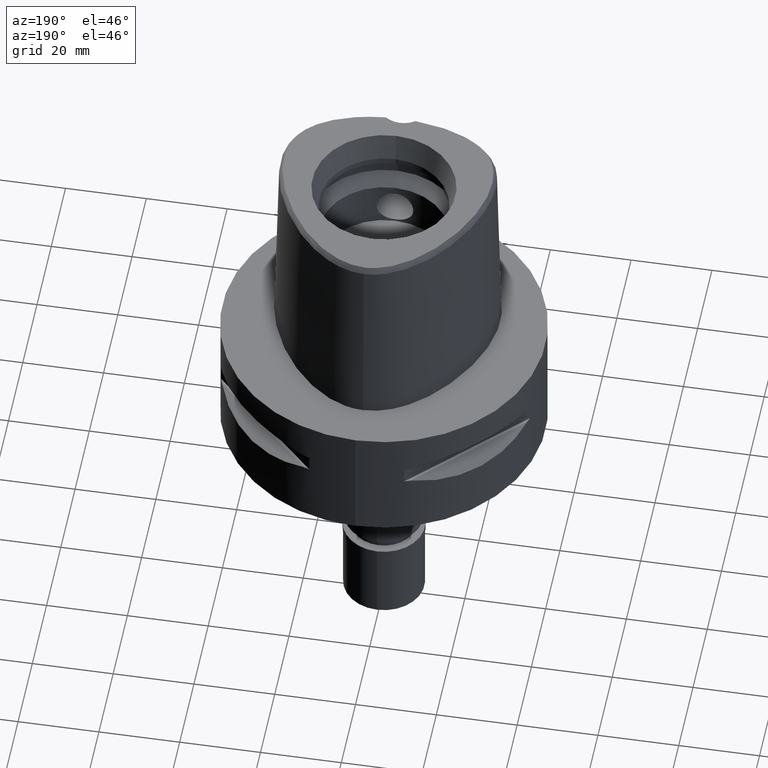
[diagram: clean part render]
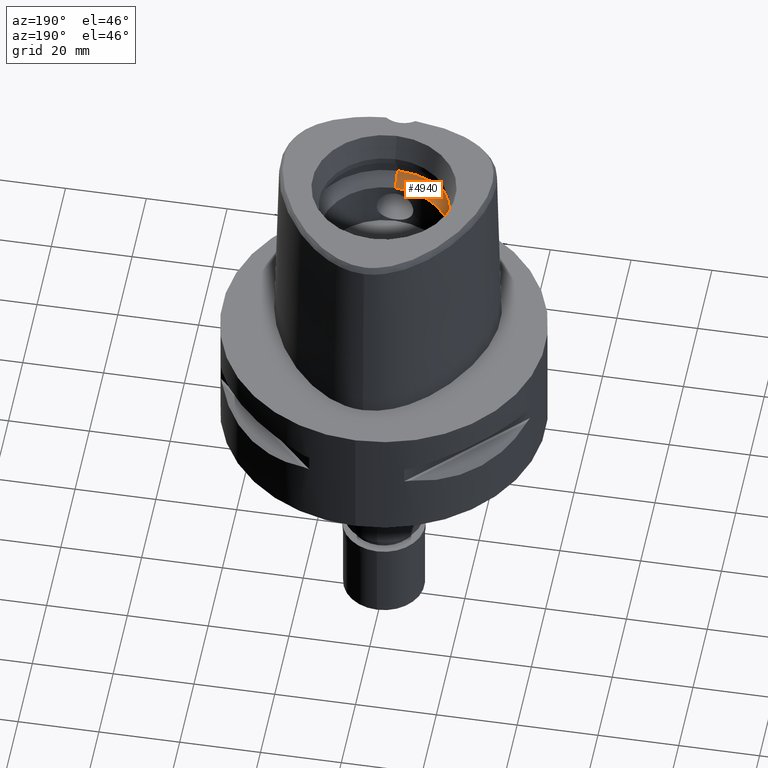
[diagram: same view with one face highlighted and labeled with its STEP entity id]
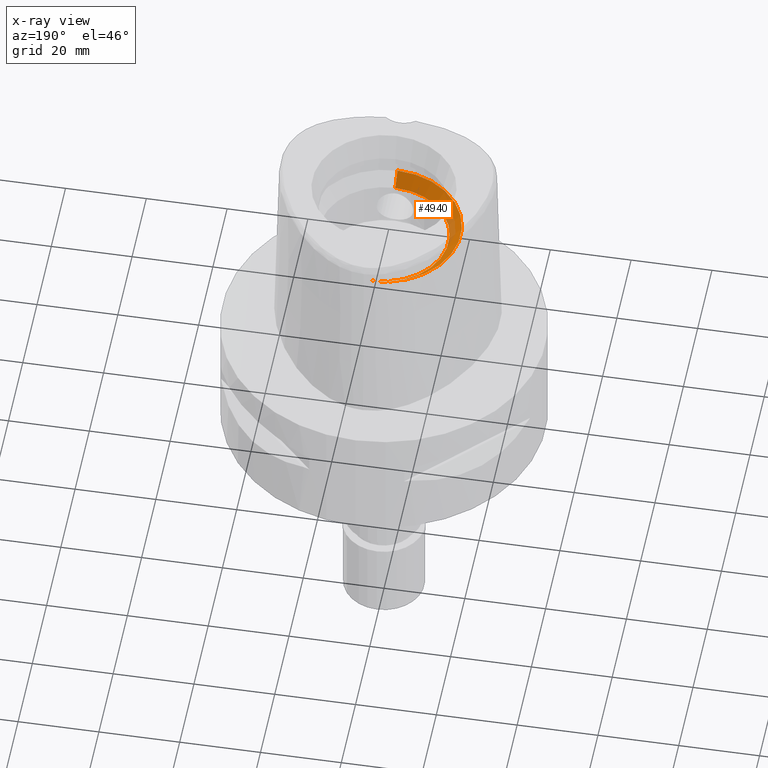
[diagram: x-ray of the same camera — body ghosted, the highlighted face saturated]
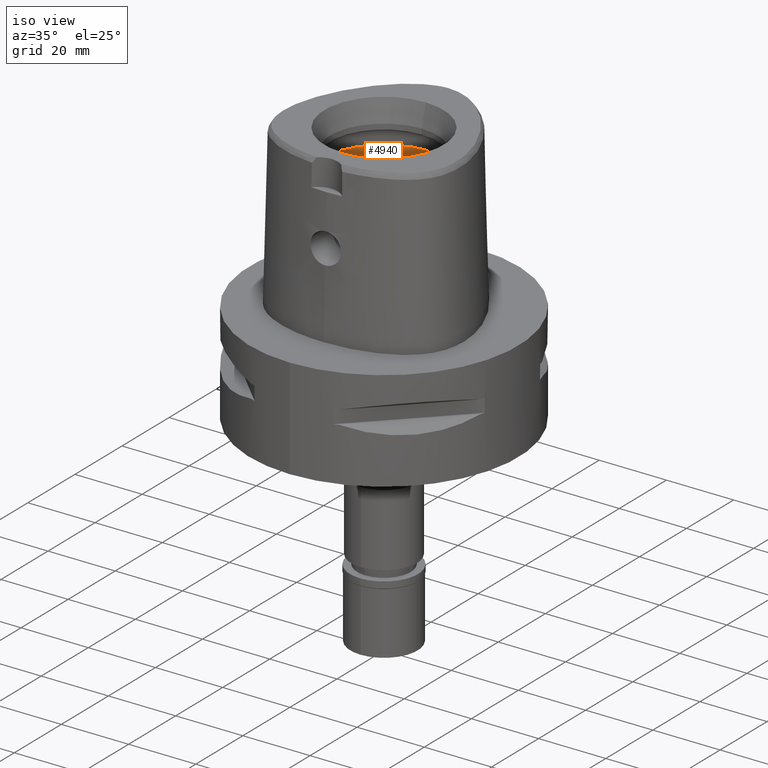
[diagram: same view with one face highlighted and labeled with its STEP entity id]
A machine part, auxiliary view. The second image highlights one B-rep face of the part: STEP entity #4940.
The next image is the same camera in x-ray: the body ghosted, the highlighted face saturated — about 11% of this face is hidden behind the body in this view.
A second angle (iso view) of the same face is appended — the face is thin or edge-on in the first view.
In plain terms, the highlighted conical surface has half-angle 45 deg.
Its self-contained STEP definition (entity closure, byte-faithful):
#164 = CARTESIAN_POINT ( 'NONE',  ( 0.0000000000000000000, -16.00000000000000000, 31.50000000000000000 ) ) ;
#349 = ORIENTED_EDGE ( 'NONE', *, *, #4088, .F. ) ;
#397 = CARTESIAN_POINT ( 'NONE',  ( 0.0000000000000000000, -19.00000000000000000, 34.50000000000000000 ) ) ;
#650 = VERTEX_POINT ( 'NONE', #3137 ) ;
#671 = VECTOR ( 'NONE', #3162, 1000.000000000000114 ) ;
#680 = VERTEX_POINT ( 'NONE', #397 ) ;
#685 = DIRECTION ( 'NONE',  ( 0.0000000000000000000, 0.0000000000000000000, 1.000000000000000000 ) ) ;
#904 = LINE ( 'NONE', #4812, #671 ) ;
#938 = VECTOR ( 'NONE', #3322, 1000.000000000000114 ) ;
#1348 = AXIS2_PLACEMENT_3D ( 'NONE', #1726, #3285, #4571 ) ;
#1476 = LINE ( 'NONE', #164, #938 ) ;
#1524 = EDGE_LOOP ( 'NONE', ( #349, #2998, #2181, #2720 ) ) ;
#1643 = DIRECTION ( 'NONE',  ( 0.0000000000000000000, -1.000000000000000000, 0.0000000000000000000 ) ) ;
#1680 = CIRCLE ( 'NONE', #2649, 19.00000000000000000 ) ;
#1726 = CARTESIAN_POINT ( 'NONE',  ( 0.0000000000000000000, 0.0000000000000000000, 31.50000000000000000 ) ) ;
#1819 = FACE_OUTER_BOUND ( 'NONE', #1524, .T. ) ;
#2181 = ORIENTED_EDGE ( 'NONE', *, *, #4380, .F. ) ;
#2649 = AXIS2_PLACEMENT_3D ( 'NONE', #4847, #4413, #1643 ) ;
#2720 = ORIENTED_EDGE ( 'NONE', *, *, #4591, .F. ) ;
#2998 = ORIENTED_EDGE ( 'NONE', *, *, #3687, .T. ) ;
#3137 = CARTESIAN_POINT ( 'NONE',  ( 0.0000000000000000000, 19.00000000000000000, 34.50000000000000000 ) ) ;
#3162 = DIRECTION ( 'NONE',  ( 0.0000000000000000000, 0.7071067811865474617, 0.7071067811865474617 ) ) ;
#3266 = VERTEX_POINT ( 'NONE', #3925 ) ;
#3285 = DIRECTION ( 'NONE',  ( 0.0000000000000000000, 0.0000000000000000000, 1.000000000000000000 ) ) ;
#3322 = DIRECTION ( 'NONE',  ( 0.0000000000000000000, -0.7071067811865474617, 0.7071067811865474617 ) ) ;
#3398 = VERTEX_POINT ( 'NONE', #5074 ) ;
#3481 = CONICAL_SURFACE ( 'NONE', #4883, 17.50000000000000000, 0.7853981633972997312 ) ;
#3496 = DIRECTION ( 'NONE',  ( 0.0000000000000000000, 1.000000000000000000, 0.0000000000000000000 ) ) ;
#3564 = CIRCLE ( 'NONE', #1348, 16.00000000000000000 ) ;
#3687 = EDGE_CURVE ( 'NONE', #3398, #650, #904, .T. ) ;
#3925 = CARTESIAN_POINT ( 'NONE',  ( 0.0000000000000000000, -16.00000000000000000, 31.50000000000000000 ) ) ;
#4088 = EDGE_CURVE ( 'NONE', #3398, #3266, #3564, .T. ) ;
#4208 = CARTESIAN_POINT ( 'NONE',  ( 0.0000000000000000000, 0.0000000000000000000, 33.00000000000000000 ) ) ;
#4380 = EDGE_CURVE ( 'NONE', #680, #650, #1680, .T. ) ;
#4413 = DIRECTION ( 'NONE',  ( 0.0000000000000000000, 0.0000000000000000000, -1.000000000000000000 ) ) ;
#4571 = DIRECTION ( 'NONE',  ( 0.0000000000000000000, 1.000000000000000000, 0.0000000000000000000 ) ) ;
#4591 = EDGE_CURVE ( 'NONE', #3266, #680, #1476, .T. ) ;
#4812 = CARTESIAN_POINT ( 'NONE',  ( 0.0000000000000000000, 16.00000000000000000, 31.50000000000000000 ) ) ;
#4847 = CARTESIAN_POINT ( 'NONE',  ( 0.0000000000000000000, 0.0000000000000000000, 34.50000000000000000 ) ) ;
#4883 = AXIS2_PLACEMENT_3D ( 'NONE', #4208, #685, #3496 ) ;
#4940 = ADVANCED_FACE ( 'NONE', ( #1819 ), #3481, .F. ) ;
#5074 = CARTESIAN_POINT ( 'NONE',  ( 0.0000000000000000000, 16.00000000000000000, 31.50000000000000000 ) ) ;